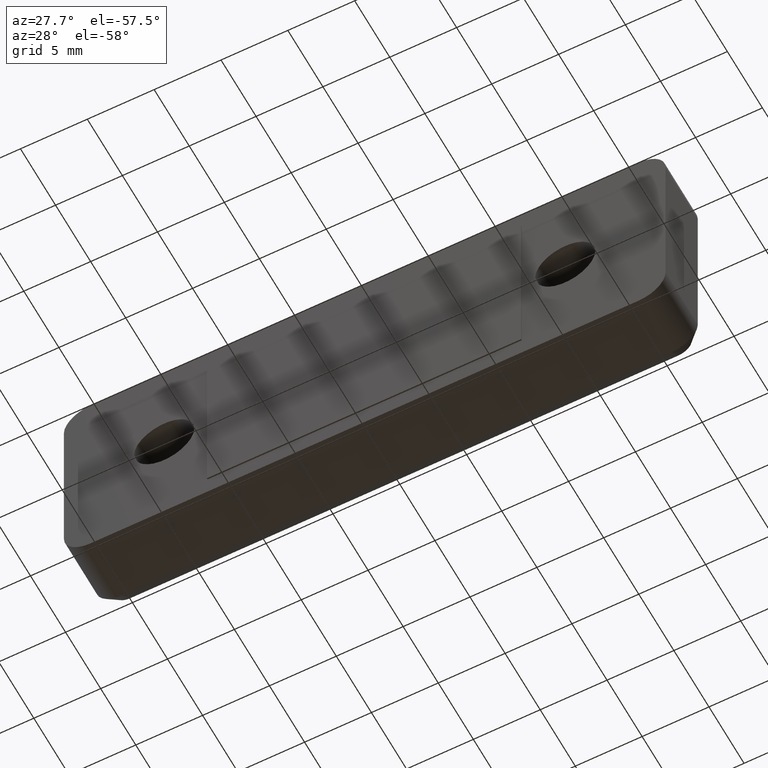
[diagram: clean part render]
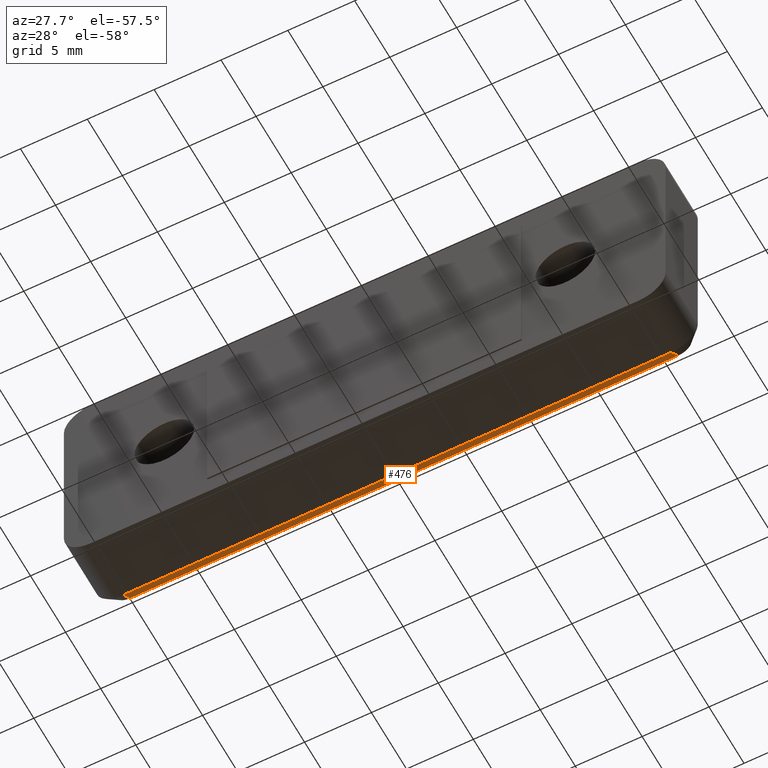
[diagram: same view with one face highlighted and labeled with its STEP entity id]
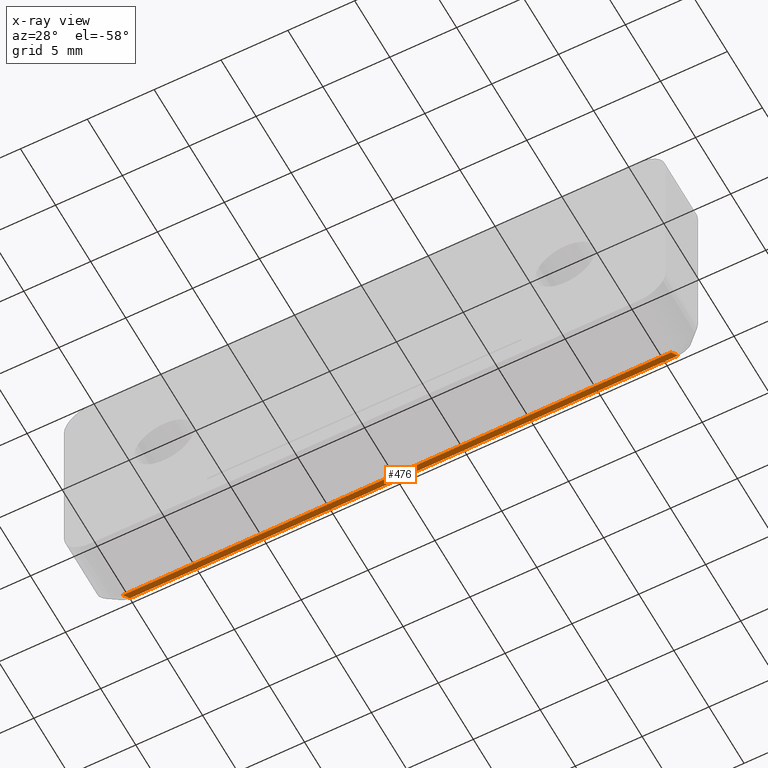
[diagram: x-ray of the same camera — body ghosted, the highlighted face saturated]
A machine part, auxiliary view. The second image highlights one B-rep face of the part: STEP entity #476.
The next image is the same camera in x-ray: the body ghosted, the highlighted face saturated — about 0% of this face is hidden behind the body in this view.
In plain terms, the highlighted planar face has unit normal (0, 0.7071, -0.7071).
Its self-contained STEP definition (entity closure, byte-faithful):
#76=FACE_OUTER_BOUND('',#109,.T.);
#109=EDGE_LOOP('',(#368,#369,#370,#371));
#155=LINE('',#736,#195);
#162=LINE('',#761,#202);
#163=LINE('',#764,#203);
#164=LINE('',#765,#204);
#195=VECTOR('',#584,40.9999999952545);
#202=VECTOR('',#609,1.41421356229437);
#203=VECTOR('',#612,40.9999999923029);
#204=VECTOR('',#613,1.41421356227834);
#233=VERTEX_POINT('',#733);
#234=VERTEX_POINT('',#735);
#243=VERTEX_POINT('',#759);
#244=VERTEX_POINT('',#763);
#279=EDGE_CURVE('',#233,#234,#155,.T.);
#292=EDGE_CURVE('',#233,#243,#162,.T.);
#293=EDGE_CURVE('',#243,#244,#163,.T.);
#294=EDGE_CURVE('',#234,#244,#164,.T.);
#368=ORIENTED_EDGE('',*,*,#279,.F.);
#369=ORIENTED_EDGE('',*,*,#292,.T.);
#370=ORIENTED_EDGE('',*,*,#293,.T.);
#371=ORIENTED_EDGE('',*,*,#294,.F.);
#457=PLANE('',#517);
#476=ADVANCED_FACE('',(#76),#457,.T.);
#517=AXIS2_PLACEMENT_3D('',#762,#610,#611);
#584=DIRECTION('',(-1.,-1.194307525669E-12,-1.194361682889E-12));
#609=DIRECTION('',(-7.02793481754447E-10,-0.707106781186547,-0.707106781186548));
#610=DIRECTION('center_axis',(0.,0.707106781186548,-0.707106781186547));
#611=DIRECTION('ref_axis',(0.,-0.707106781186547,-0.707106781186548));
#612=DIRECTION('',(-1.,-1.791482951514E-12,-1.791477535792E-12));
#613=DIRECTION('',(1.28699348380309E-9,-0.707106781186547,-0.707106781186548));
#733=CARTESIAN_POINT('',(20.4999999988945,5.60000000008089,-7.49999999991911));
#735=CARTESIAN_POINT('',(-20.49999999636,5.600000000133,-7.499999999867));
#736=CARTESIAN_POINT('',(20.49999999801,5.600000000182,-7.499999999818));
#759=CARTESIAN_POINT('',(20.4999999977629,4.60000000011092,-8.4999999998378));
#761=CARTESIAN_POINT('',(20.49999999801,5.600000000182,-7.499999999818));
#762=CARTESIAN_POINT('Origin',(0.,5.1,-8.));
#763=CARTESIAN_POINT('',(-20.49999999454,4.6000000002,-8.4999999998));
#764=CARTESIAN_POINT('',(20.49999999702,4.600000000273,-8.499999999727));
#765=CARTESIAN_POINT('',(-20.49999999636,5.600000000133,-7.499999999867));